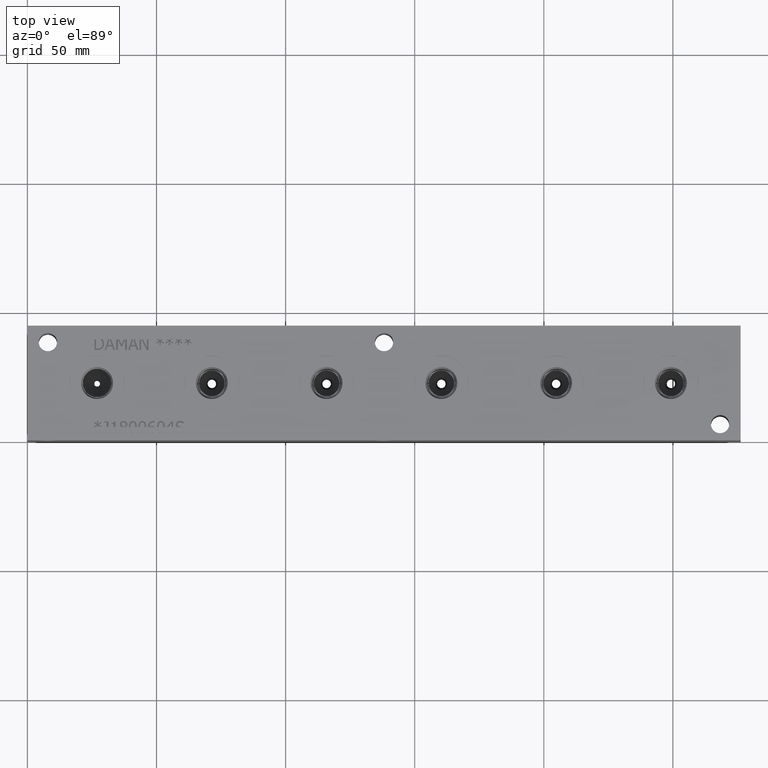
[diagram: clean part render]
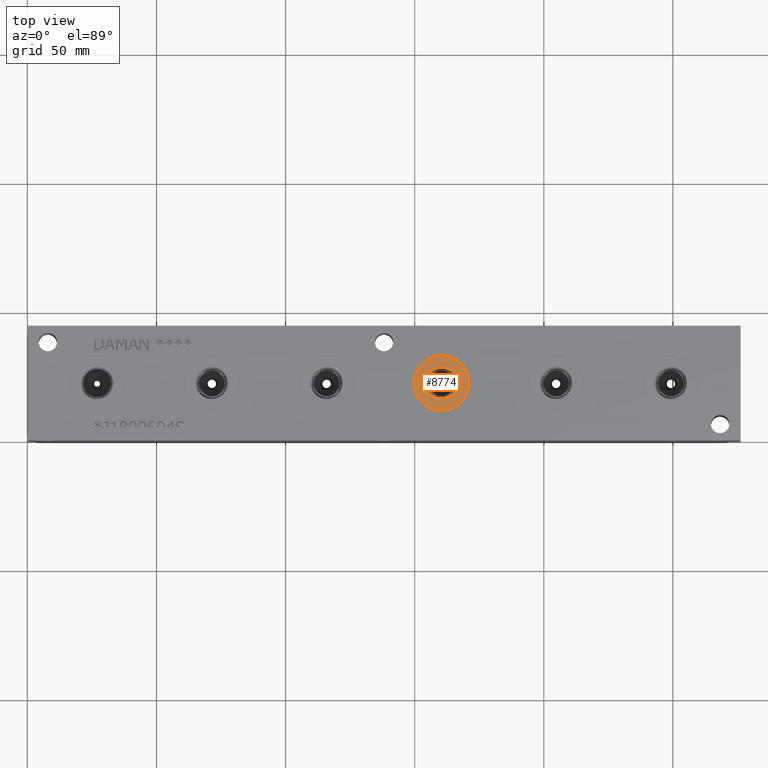
[diagram: same view with one face highlighted and labeled with its STEP entity id]
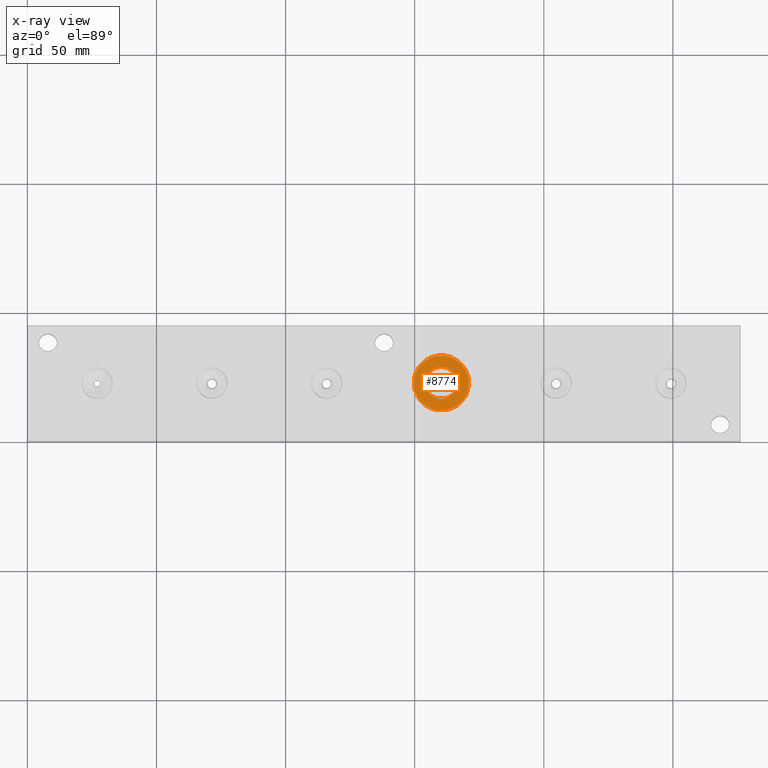
[diagram: x-ray of the same camera — body ghosted, the highlighted face saturated]
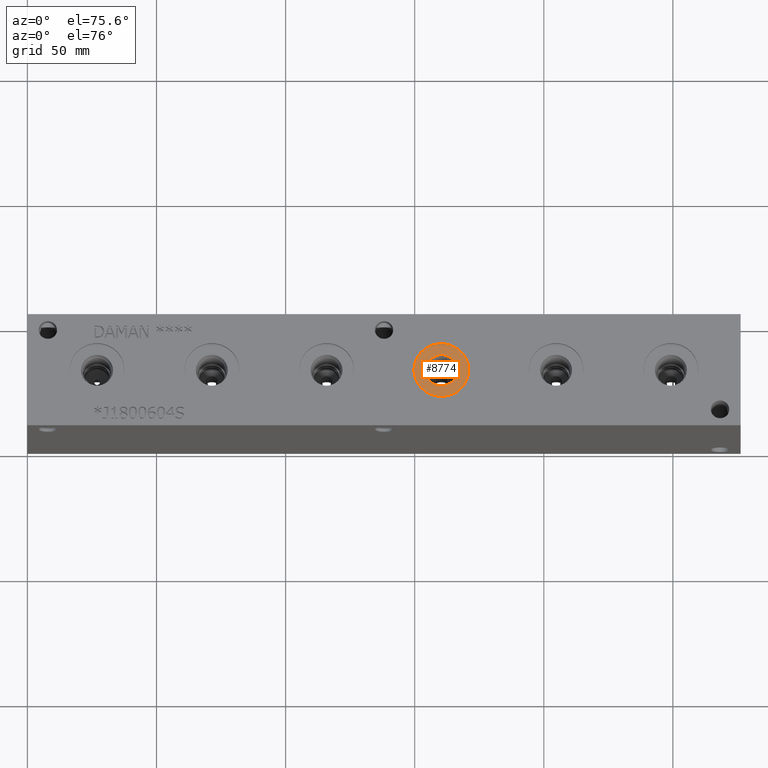
[diagram: same view with one face highlighted and labeled with its STEP entity id]
A machine part, top view. The second image highlights one B-rep face of the part: STEP entity #8774.
The next image is the same camera in x-ray: the body ghosted, the highlighted face saturated — about 0% of this face is hidden behind the body in this view.
A second angle (auxiliary view) of the same face is appended — the face is thin or edge-on in the first view.
In plain terms, the highlighted planar face has unit normal (0, 0, 1).
Its self-contained STEP definition (entity closure, byte-faithful):
#352=CIRCLE('',#9366,10.6426);
#353=CIRCLE('',#9367,10.6426);
#354=CIRCLE('',#9368,6.1976);
#431=FACE_BOUND('',#1649,.T.);
#679=PLANE('',#9365);
#1128=FACE_OUTER_BOUND('',#1648,.T.);
#1648=EDGE_LOOP('',(#7799,#7800));
#1649=EDGE_LOOP('',(#7801));
#4233=VERTEX_POINT('',#15141);
#4234=VERTEX_POINT('',#15142);
#4235=VERTEX_POINT('',#15145);
#5439=EDGE_CURVE('',#4233,#4234,#352,.T.);
#5440=EDGE_CURVE('',#4234,#4233,#353,.T.);
#5441=EDGE_CURVE('',#4235,#4235,#354,.T.);
#7799=ORIENTED_EDGE('',*,*,#5439,.T.);
#7800=ORIENTED_EDGE('',*,*,#5440,.T.);
#7801=ORIENTED_EDGE('',*,*,#5441,.F.);
#8774=ADVANCED_FACE('',(#1128,#431),#679,.T.);
#9365=AXIS2_PLACEMENT_3D('',#15140,#11273,#11274);
#9366=AXIS2_PLACEMENT_3D('',#15143,#11275,#11276);
#9367=AXIS2_PLACEMENT_3D('',#15144,#11277,#11278);
#9368=AXIS2_PLACEMENT_3D('',#15146,#11279,#11280);
#11273=DIRECTION('center_axis',(0.,0.,1.));
#11274=DIRECTION('ref_axis',(1.,0.,0.));
#11275=DIRECTION('center_axis',(0.,0.,1.));
#11276=DIRECTION('ref_axis',(1.,0.,0.));
#11277=DIRECTION('center_axis',(0.,0.,1.));
#11278=DIRECTION('ref_axis',(1.,0.,0.));
#11279=DIRECTION('center_axis',(0.,0.,1.));
#11280=DIRECTION('ref_axis',(1.,0.,0.));
#15140=CARTESIAN_POINT('Origin',(160.3248,22.225,43.6626));
#15141=CARTESIAN_POINT('',(170.9674,22.225,43.6626));
#15142=CARTESIAN_POINT('',(149.6822,22.225,43.6626));
#15143=CARTESIAN_POINT('Origin',(160.3248,22.225,43.6626));
#15144=CARTESIAN_POINT('Origin',(160.3248,22.225,43.6626));
#15145=CARTESIAN_POINT('',(154.1272,22.225,43.6626));
#15146=CARTESIAN_POINT('Origin',(160.3248,22.225,43.6626));